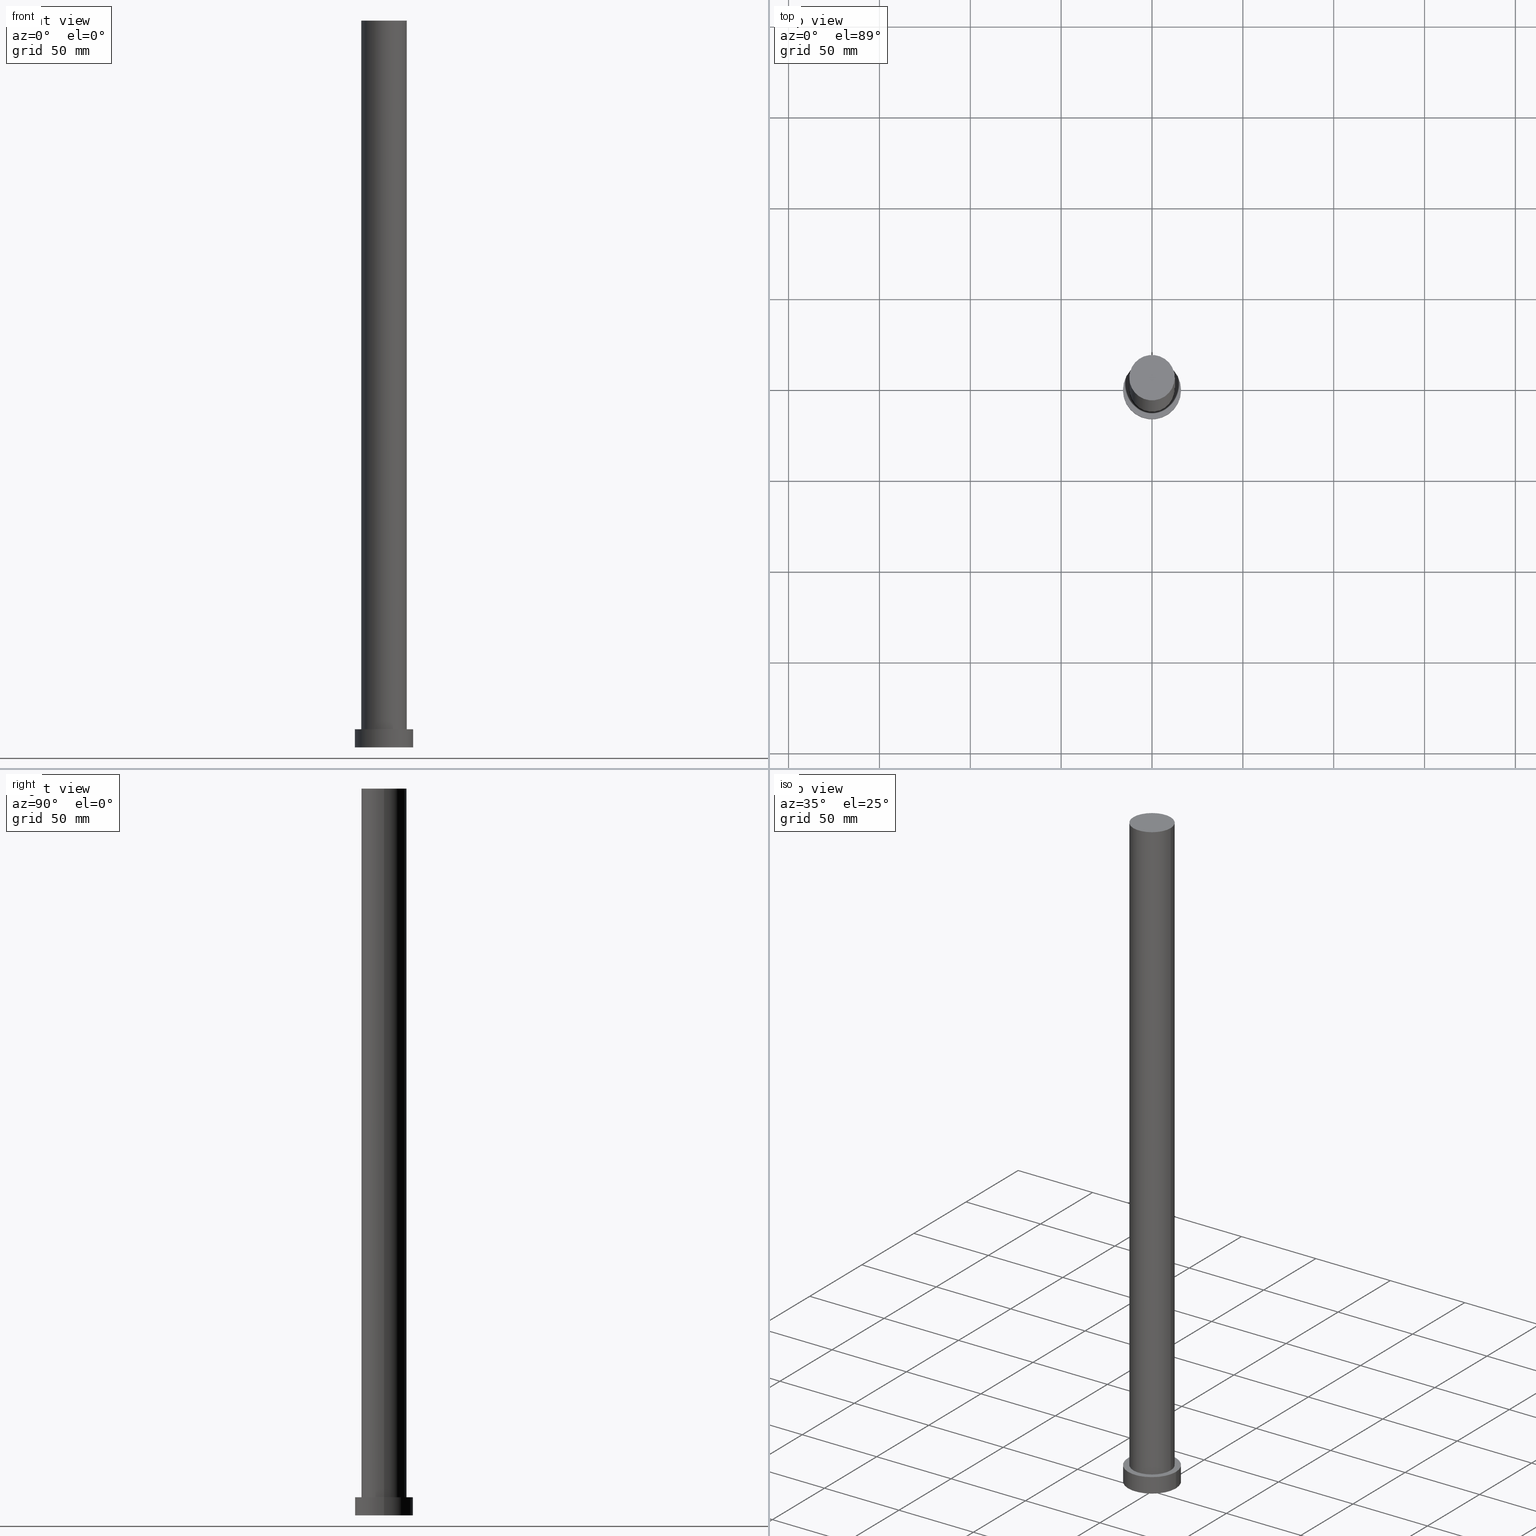
[diagram: canonical four-view strip — front | top / right | iso, engineering-drawing reading convention]
A machine part, canonical four-view strip (front | top / right | iso — engineering-drawing reading convention). The complete STEP part file that produces these views, byte-faithful:
ISO-10303-21;
HEADER;
FILE_DESCRIPTION (( 'STEP AP203' ),
    '1' );
FILE_NAME ('eb0c.STEP',
    '2026-02-06T12:34:33',
    ( '' ),
    ( '' ),
    'SwSTEP 2.0',
    'SolidWorks 2019',
    '' );
FILE_SCHEMA (( 'CONFIG_CONTROL_DESIGN' ));
ENDSEC;

DATA;
#1 = DIRECTION ( 'NONE',  ( 0.000000000000000000, 0.000000000000000000, 1.000000000000000000 ) ) ;
#2 = CIRCLE ( 'NONE', #194, 16.00000000000000000 ) ;
#3 = DIRECTION ( 'NONE',  ( -0.000000000000000000, -0.000000000000000000, -1.000000000000000000 ) ) ;
#4 = EDGE_CURVE ( 'NONE', #222, #123, #27, .T. ) ;
#5 = AXIS2_PLACEMENT_3D ( 'NONE', #110, #39, #76 ) ;
#6 = EDGE_CURVE ( 'NONE', #13, #141, #115, .T. ) ;
#7 = ADVANCED_FACE ( 'NONE', ( #228 ), #51, .T. ) ;
#8 = PERSON_AND_ORGANIZATION ( #134, #62 ) ;
#9 = AXIS2_PLACEMENT_3D ( 'NONE', #196, #11, #161 ) ;
#10 = DIRECTION ( 'NONE',  ( 0.000000000000000000, 0.000000000000000000, 1.000000000000000000 ) ) ;
#11 = DIRECTION ( 'NONE',  ( 0.000000000000000000, 0.000000000000000000, 1.000000000000000000 ) ) ;
#12 = PRODUCT_DEFINITION_FORMATION_WITH_SPECIFIED_SOURCE ( 'LIBOVOLN�', '', #203, .NOT_KNOWN. ) ;
#13 = VERTEX_POINT ( 'NONE', #112 ) ;
#14 = MECHANICAL_CONTEXT ( 'NONE', #229, 'mechanical' ) ;
#15 = DIRECTION ( 'NONE',  ( 1.000000000000000000, 0.000000000000000000, 0.000000000000000000 ) ) ;
#16 = EDGE_LOOP ( 'NONE', ( #18, #120 ) ) ;
#17 = PRODUCT_DEFINITION ( 'NEZN�M�', '', #12, #91 ) ;
#18 = ORIENTED_EDGE ( 'NONE', *, *, #97, .F. ) ;
#19 = CALENDAR_DATE ( 2026, 6, 2 ) ;
#20 = CARTESIAN_POINT ( 'NONE',  ( 0.000000000000000000, 0.000000000000000000, 400.0000000000000000 ) ) ;
#21 = PERSON_AND_ORGANIZATION ( #134, #62 ) ;
#22 = PERSON_AND_ORGANIZATION ( #134, #62 ) ;
#23 = DIRECTION ( 'NONE',  ( 0.000000000000000000, 0.000000000000000000, 1.000000000000000000 ) ) ;
#24 = CIRCLE ( 'NONE', #242, 16.00000000000000000 ) ;
#25 = SECURITY_CLASSIFICATION_LEVEL ( 'unclassified' ) ;
#26 = LOCAL_TIME ( 13, 34, 33.00000000000000000, #28 ) ;
#27 = CIRCLE ( 'NONE', #193, 16.00000000000000000 ) ;
#28 = COORDINATED_UNIVERSAL_TIME_OFFSET ( 1, 0, .AHEAD. ) ;
#29 = ORIENTED_EDGE ( 'NONE', *, *, #30, .T. ) ;
#30 = EDGE_CURVE ( 'NONE', #160, #13, #35, .T. ) ;
#31 = CARTESIAN_POINT ( 'NONE',  ( 0.000000000000000000, 0.000000000000000000, 10.00000000000000000 ) ) ;
#32 = ORIENTED_EDGE ( 'NONE', *, *, #81, .T. ) ;
#33 = APPLICATION_PROTOCOL_DEFINITION ( 'international standard', 'config_control_design', 1994, #105 ) ;
#34 = ORIENTED_EDGE ( 'NONE', *, *, #155, .T. ) ;
#35 = CIRCLE ( 'NONE', #140, 12.50000000000000000 ) ;
#36 = DIRECTION ( 'NONE',  ( 1.000000000000000000, 0.000000000000000000, 0.000000000000000000 ) ) ;
#37 = DIRECTION ( 'NONE',  ( -0.000000000000000000, -0.000000000000000000, -1.000000000000000000 ) ) ;
#38 = COORDINATED_UNIVERSAL_TIME_OFFSET ( 1, 0, .AHEAD. ) ;
#39 = DIRECTION ( 'NONE',  ( -0.000000000000000000, -0.000000000000000000, -1.000000000000000000 ) ) ;
#40 = CARTESIAN_POINT ( 'NONE',  ( 16.00000000000000000, 1.959434878635765131E-15, 10.00000000000000000 ) ) ;
#41 = DATE_TIME_ROLE ( 'classification_date' ) ;
#42 = SHAPE_DEFINITION_REPRESENTATION ( #181, #240 ) ;
#43 = AXIS2_PLACEMENT_3D ( 'NONE', #183, #119, #223 ) ;
#44 = APPROVAL_DATE_TIME ( #241, #126 ) ;
#45 = DIRECTION ( 'NONE',  ( 0.000000000000000000, 0.000000000000000000, 1.000000000000000000 ) ) ;
#46 = EDGE_LOOP ( 'NONE', ( #182, #125, #34, #88 ) ) ;
#47 = ORIENTED_EDGE ( 'NONE', *, *, #155, .F. ) ;
#48 = AXIS2_PLACEMENT_3D ( 'NONE', #227, #10, #101 ) ;
#49 = VERTEX_POINT ( 'NONE', #166 ) ;
#50 = CYLINDRICAL_SURFACE ( 'NONE', #77, 12.50000000000000000 ) ;
#51 = CYLINDRICAL_SURFACE ( 'NONE', #216, 16.00000000000000000 ) ;
#52 = AXIS2_PLACEMENT_3D ( 'NONE', #20, #208, #89 ) ;
#53 = DIRECTION ( 'NONE',  ( 0.000000000000000000, 0.000000000000000000, 1.000000000000000000 ) ) ;
#54 = DIRECTION ( 'NONE',  ( -1.000000000000000000, 0.000000000000000000, 0.000000000000000000 ) ) ;
#55 = DIRECTION ( 'NONE',  ( 1.000000000000000000, 0.000000000000000000, 0.000000000000000000 ) ) ;
#56 = APPROVAL ( #225, 'NEUR�EN�' ) ;
#57 = CIRCLE ( 'NONE', #70, 12.50000000000000000 ) ;
#58 = DATE_AND_TIME ( #137, #26 ) ;
#59 = MANIFOLD_SOLID_BREP ( 'P�idat vysunut�m3', #200 ) ;
#60 = PERSON_AND_ORGANIZATION ( #134, #62 ) ;
#61 = FACE_OUTER_BOUND ( 'NONE', #68, .T. ) ;
#62 = ORGANIZATION ( 'NEUR�EN�', 'NEUR�EN�', '' ) ;
#63 =( LENGTH_UNIT ( ) NAMED_UNIT ( * ) SI_UNIT ( .MILLI., .METRE. ) );
#64 = ORIENTED_EDGE ( 'NONE', *, *, #234, .T. ) ;
#65 = UNCERTAINTY_MEASURE_WITH_UNIT (LENGTH_MEASURE( 1.000000000000000082E-05 ), #63, 'distance_accuracy_value', 'NONE');
#66 = ORIENTED_EDGE ( 'NONE', *, *, #234, .F. ) ;
#67 = PERSON_AND_ORGANIZATION_ROLE ( 'design_owner' ) ;
#68 = EDGE_LOOP ( 'NONE', ( #243, #252 ) ) ;
#69 = FACE_OUTER_BOUND ( 'NONE', #226, .T. ) ;
#70 = AXIS2_PLACEMENT_3D ( 'NONE', #230, #53, #131 ) ;
#71 = ORIENTED_EDGE ( 'NONE', *, *, #138, .T. ) ;
#72 = DIRECTION ( 'NONE',  ( 0.000000000000000000, 0.000000000000000000, 1.000000000000000000 ) ) ;
#73 = DIRECTION ( 'NONE',  ( -0.000000000000000000, -0.000000000000000000, -1.000000000000000000 ) ) ;
#74 = APPROVAL ( #254, 'NEUR�EN�' ) ;
#75 = CC_DESIGN_APPROVAL ( #126, ( #129 ) ) ;
#76 = DIRECTION ( 'NONE',  ( -1.000000000000000000, 0.000000000000000000, 0.000000000000000000 ) ) ;
#77 = AXIS2_PLACEMENT_3D ( 'NONE', #117, #199, #80 ) ;
#78 = PRODUCT_RELATED_PRODUCT_CATEGORY ( 'detail', '', ( #203 ) ) ;
#79 = PLANE ( 'NONE',  #43 ) ;
#80 = DIRECTION ( 'NONE',  ( -1.000000000000000000, 0.000000000000000000, 0.000000000000000000 ) ) ;
#81 = EDGE_CURVE ( 'NONE', #158, #49, #235, .T. ) ;
#82 = AXIS2_PLACEMENT_3D ( 'NONE', #133, #128, #36 ) ;
#83 = ORIENTED_EDGE ( 'NONE', *, *, #138, .F. ) ;
#84 = DIRECTION ( 'NONE',  ( 1.000000000000000000, 0.000000000000000000, 0.000000000000000000 ) ) ;
#85 = ORIENTED_EDGE ( 'NONE', *, *, #4, .T. ) ;
#86 = DATE_TIME_ROLE ( 'creation_date' ) ;
#87 = APPROVAL_PERSON_ORGANIZATION ( #153, #126, #152 ) ;
#88 = ORIENTED_EDGE ( 'NONE', *, *, #198, .T. ) ;
#89 = DIRECTION ( 'NONE',  ( -1.000000000000000000, 0.000000000000000000, 0.000000000000000000 ) ) ;
#90 = CALENDAR_DATE ( 2026, 6, 2 ) ;
#91 = DESIGN_CONTEXT ( 'detailed design', #105, 'design' ) ;
#92 = CARTESIAN_POINT ( 'NONE',  ( 12.50000000000000000, 1.530808498934191521E-15, 10.00000000000000000 ) ) ;
#93 = PERSON_AND_ORGANIZATION_ROLE ( 'creator' ) ;
#94 = VECTOR ( 'NONE', #73, 1000.000000000000000 ) ;
#95 = CARTESIAN_POINT ( 'NONE',  ( -16.00000000000000000, 0.000000000000000000, 0.000000000000000000 ) ) ;
#96 =( GEOMETRIC_REPRESENTATION_CONTEXT ( 3 ) GLOBAL_UNCERTAINTY_ASSIGNED_CONTEXT ( ( #65 ) ) GLOBAL_UNIT_ASSIGNED_CONTEXT ( ( #63, #202, #249 ) ) REPRESENTATION_CONTEXT ( 'NONE', 'WORKASPACE' ) );
#97 = EDGE_CURVE ( 'NONE', #118, #141, #177, .T. ) ;
#98 = CC_DESIGN_APPROVAL ( #56, ( #17 ) ) ;
#99 = APPROVAL_STATUS ( 'not_yet_approved' ) ;
#100 = CARTESIAN_POINT ( 'NONE',  ( 0.000000000000000000, 0.000000000000000000, 10.00000000000000000 ) ) ;
#101 = DIRECTION ( 'NONE',  ( 1.000000000000000000, 0.000000000000000000, -0.000000000000000000 ) ) ;
#102 = EDGE_LOOP ( 'NONE', ( #32, #64 ) ) ;
#103 = CC_DESIGN_SECURITY_CLASSIFICATION ( #129, ( #12 ) ) ;
#104 = EDGE_LOOP ( 'NONE', ( #66, #144, #85, #47 ) ) ;
#105 = APPLICATION_CONTEXT ( 'configuration controlled 3d designs of mechanical parts and assemblies' ) ;
#106 = DIRECTION ( 'NONE',  ( 1.000000000000000000, 0.000000000000000000, 0.000000000000000000 ) ) ;
#107 = ORIENTED_EDGE ( 'NONE', *, *, #145, .T. ) ;
#108 = EDGE_CURVE ( 'NONE', #49, #222, #212, .T. ) ;
#109 = AXIS2_PLACEMENT_3D ( 'NONE', #100, #45, #205 ) ;
#110 = CARTESIAN_POINT ( 'NONE',  ( 0.000000000000000000, 0.000000000000000000, 10.00000000000000000 ) ) ;
#111 = DATE_AND_TIME ( #19, #245 ) ;
#112 = CARTESIAN_POINT ( 'NONE',  ( 12.50000000000000000, 1.530808498934191521E-15, 400.0000000000000000 ) ) ;
#113 = COORDINATED_UNIVERSAL_TIME_OFFSET ( 1, 0, .AHEAD. ) ;
#114 = DIRECTION ( 'NONE',  ( -0.000000000000000000, -0.000000000000000000, -1.000000000000000000 ) ) ;
#115 = LINE ( 'NONE', #169, #251 ) ;
#116 = ADVANCED_FACE ( 'NONE', ( #211 ), #165, .T. ) ;
#117 = CARTESIAN_POINT ( 'NONE',  ( 0.000000000000000000, 0.000000000000000000, 400.0000000000000000 ) ) ;
#118 = VERTEX_POINT ( 'NONE', #191 ) ;
#119 = DIRECTION ( 'NONE',  ( 0.000000000000000000, 0.000000000000000000, 1.000000000000000000 ) ) ;
#120 = ORIENTED_EDGE ( 'NONE', *, *, #188, .F. ) ;
#121 = APPROVAL_PERSON_ORGANIZATION ( #143, #56, #150 ) ;
#122 = DIRECTION ( 'NONE',  ( 0.000000000000000000, 0.000000000000000000, 1.000000000000000000 ) ) ;
#123 = VERTEX_POINT ( 'NONE', #95 ) ;
#124 = CARTESIAN_POINT ( 'NONE',  ( -16.00000000000000000, 0.000000000000000000, 10.00000000000000000 ) ) ;
#125 = ORIENTED_EDGE ( 'NONE', *, *, #81, .F. ) ;
#126 = APPROVAL ( #99, 'NEUR�EN�' ) ;
#127 = DATE_AND_TIME ( #207, #220 ) ;
#128 = DIRECTION ( 'NONE',  ( 0.000000000000000000, 0.000000000000000000, 1.000000000000000000 ) ) ;
#129 = SECURITY_CLASSIFICATION ( '', '', #25 ) ;
#130 = ADVANCED_FACE ( 'NONE', ( #253 ), #189, .T. ) ;
#131 = DIRECTION ( 'NONE',  ( 1.000000000000000000, 0.000000000000000000, 0.000000000000000000 ) ) ;
#132 = PERSON_AND_ORGANIZATION ( #134, #62 ) ;
#133 = CARTESIAN_POINT ( 'NONE',  ( 0.000000000000000000, 0.000000000000000000, 10.00000000000000000 ) ) ;
#134 = PERSON ( 'NEUR�EN�', 'NEUR�EN�', 'NEUR�EN�', ('NEUR�EN�'), ('NEUR�EN�'), ('NEUR�EN�') ) ;
#135 = CC_DESIGN_DATE_AND_TIME_ASSIGNMENT ( #58, #41, ( #129 ) ) ;
#136 = APPROVAL_PERSON_ORGANIZATION ( #21, #74, #147 ) ;
#137 = CALENDAR_DATE ( 2026, 6, 2 ) ;
#138 = EDGE_CURVE ( 'NONE', #160, #118, #255, .T. ) ;
#139 = FACE_OUTER_BOUND ( 'NONE', #102, .T. ) ;
#140 = AXIS2_PLACEMENT_3D ( 'NONE', #148, #72, #168 ) ;
#141 = VERTEX_POINT ( 'NONE', #92 ) ;
#142 = APPLICATION_PROTOCOL_DEFINITION ( 'international standard', 'config_control_design', 1994, #229 ) ;
#143 = PERSON_AND_ORGANIZATION ( #134, #62 ) ;
#144 = ORIENTED_EDGE ( 'NONE', *, *, #108, .T. ) ;
#145 = EDGE_CURVE ( 'NONE', #13, #160, #57, .T. ) ;
#146 = DIRECTION ( 'NONE',  ( -0.000000000000000000, -0.000000000000000000, -1.000000000000000000 ) ) ;
#147 = APPROVAL_ROLE ( '' ) ;
#148 = CARTESIAN_POINT ( 'NONE',  ( 0.000000000000000000, 0.000000000000000000, 400.0000000000000000 ) ) ;
#149 = CARTESIAN_POINT ( 'NONE',  ( -12.50000000000000000, 0.000000000000000000, 400.0000000000000000 ) ) ;
#150 = APPROVAL_ROLE ( '' ) ;
#151 = CARTESIAN_POINT ( 'NONE',  ( 0.000000000000000000, 0.000000000000000000, 10.00000000000000000 ) ) ;
#152 = APPROVAL_ROLE ( '' ) ;
#153 = PERSON_AND_ORGANIZATION ( #134, #62 ) ;
#154 = AXIS2_PLACEMENT_3D ( 'NONE', #197, #176, #106 ) ;
#155 = EDGE_CURVE ( 'NONE', #158, #123, #210, .T. ) ;
#156 = FACE_BOUND ( 'NONE', #16, .T. ) ;
#157 = LOCAL_TIME ( 13, 34, 33.00000000000000000, #215 ) ;
#158 = VERTEX_POINT ( 'NONE', #124 ) ;
#159 = PLANE ( 'NONE',  #48 ) ;
#160 = VERTEX_POINT ( 'NONE', #180 ) ;
#161 = DIRECTION ( 'NONE',  ( 1.000000000000000000, 0.000000000000000000, -0.000000000000000000 ) ) ;
#162 = ORIENTED_EDGE ( 'NONE', *, *, #188, .T. ) ;
#163 = FACE_OUTER_BOUND ( 'NONE', #248, .T. ) ;
#164 = AXIS2_PLACEMENT_3D ( 'NONE', #151, #1, #55 ) ;
#165 = CYLINDRICAL_SURFACE ( 'NONE', #5, 16.00000000000000000 ) ;
#166 = CARTESIAN_POINT ( 'NONE',  ( 16.00000000000000000, 1.959434878635765131E-15, 10.00000000000000000 ) ) ;
#167 = APPROVAL_DATE_TIME ( #190, #74 ) ;
#168 = DIRECTION ( 'NONE',  ( 1.000000000000000000, 0.000000000000000000, 0.000000000000000000 ) ) ;
#169 = CARTESIAN_POINT ( 'NONE',  ( 12.50000000000000000, 1.530808498934191521E-15, 400.0000000000000000 ) ) ;
#170 = CC_DESIGN_PERSON_AND_ORGANIZATION_ASSIGNMENT ( #8, #217, ( #129 ) ) ;
#171 = CIRCLE ( 'NONE', #109, 12.50000000000000000 ) ;
#172 = VECTOR ( 'NONE', #37, 1000.000000000000000 ) ;
#173 = CARTESIAN_POINT ( 'NONE',  ( 16.00000000000000000, 1.959434878635765131E-15, 0.000000000000000000 ) ) ;
#174 = ADVANCED_FACE ( 'NONE', ( #61 ), #219, .F. ) ;
#175 = PERSON_AND_ORGANIZATION ( #134, #62 ) ;
#176 = DIRECTION ( 'NONE',  ( 0.000000000000000000, 0.000000000000000000, 1.000000000000000000 ) ) ;
#177 = CIRCLE ( 'NONE', #82, 12.50000000000000000 ) ;
#178 = ORIENTED_EDGE ( 'NONE', *, *, #97, .T. ) ;
#179 = ADVANCED_FACE ( 'NONE', ( #156, #139 ), #159, .T. ) ;
#180 = CARTESIAN_POINT ( 'NONE',  ( -12.50000000000000000, 0.000000000000000000, 400.0000000000000000 ) ) ;
#181 = PRODUCT_DEFINITION_SHAPE ( 'NONE', 'NONE',  #17 ) ;
#182 = ORIENTED_EDGE ( 'NONE', *, *, #108, .F. ) ;
#183 = CARTESIAN_POINT ( 'NONE',  ( 0.000000000000000000, 0.000000000000000000, 400.0000000000000000 ) ) ;
#184 = PERSON_AND_ORGANIZATION_ROLE ( 'creator' ) ;
#185 = COORDINATED_UNIVERSAL_TIME_OFFSET ( 1, 0, .AHEAD. ) ;
#186 = DIRECTION ( 'NONE',  ( 1.000000000000000000, 0.000000000000000000, 0.000000000000000000 ) ) ;
#187 = APPROVAL_DATE_TIME ( #127, #56 ) ;
#188 = EDGE_CURVE ( 'NONE', #141, #118, #171, .T. ) ;
#189 = CYLINDRICAL_SURFACE ( 'NONE', #52, 12.50000000000000000 ) ;
#190 = DATE_AND_TIME ( #90, #213 ) ;
#191 = CARTESIAN_POINT ( 'NONE',  ( -12.50000000000000000, 0.000000000000000000, 10.00000000000000000 ) ) ;
#192 = CC_DESIGN_DATE_AND_TIME_ASSIGNMENT ( #111, #86, ( #17 ) ) ;
#193 = AXIS2_PLACEMENT_3D ( 'NONE', #224, #23, #186 ) ;
#194 = AXIS2_PLACEMENT_3D ( 'NONE', #31, #122, #15 ) ;
#195 = CC_DESIGN_PERSON_AND_ORGANIZATION_ASSIGNMENT ( #22, #184, ( #17 ) ) ;
#196 = CARTESIAN_POINT ( 'NONE',  ( 0.000000000000000000, 0.000000000000000000, 0.000000000000000000 ) ) ;
#197 = CARTESIAN_POINT ( 'NONE',  ( 0.000000000000000000, 0.000000000000000000, 0.000000000000000000 ) ) ;
#198 = EDGE_CURVE ( 'NONE', #123, #222, #24, .T. ) ;
#199 = DIRECTION ( 'NONE',  ( -0.000000000000000000, -0.000000000000000000, -1.000000000000000000 ) ) ;
#200 = CLOSED_SHELL ( 'NONE', ( #130, #116, #7, #179, #174, #209, #221 ) ) ;
#201 = ORIENTED_EDGE ( 'NONE', *, *, #6, .F. ) ;
#202 =( NAMED_UNIT ( * ) PLANE_ANGLE_UNIT ( ) SI_UNIT ( $, .RADIAN. ) );
#203 = PRODUCT ( 'eb0c', 'eb0c', '', ( #14 ) ) ;
#204 = ORIENTED_EDGE ( 'NONE', *, *, #30, .F. ) ;
#205 = DIRECTION ( 'NONE',  ( 1.000000000000000000, 0.000000000000000000, 0.000000000000000000 ) ) ;
#206 = EDGE_LOOP ( 'NONE', ( #246, #250, #162, #83 ) ) ;
#207 = CALENDAR_DATE ( 2026, 6, 2 ) ;
#208 = DIRECTION ( 'NONE',  ( -0.000000000000000000, -0.000000000000000000, -1.000000000000000000 ) ) ;
#209 = ADVANCED_FACE ( 'NONE', ( #163 ), #50, .T. ) ;
#210 = LINE ( 'NONE', #232, #172 ) ;
#211 = FACE_OUTER_BOUND ( 'NONE', #104, .T. ) ;
#212 = LINE ( 'NONE', #40, #231 ) ;
#213 = LOCAL_TIME ( 13, 34, 33.00000000000000000, #113 ) ;
#214 = PERSON_AND_ORGANIZATION_ROLE ( 'design_supplier' ) ;
#215 = COORDINATED_UNIVERSAL_TIME_OFFSET ( 1, 0, .AHEAD. ) ;
#216 = AXIS2_PLACEMENT_3D ( 'NONE', #233, #3, #54 ) ;
#217 = PERSON_AND_ORGANIZATION_ROLE ( 'classification_officer' ) ;
#218 = CC_DESIGN_PERSON_AND_ORGANIZATION_ASSIGNMENT ( #60, #214, ( #12 ) ) ;
#219 = PLANE ( 'NONE',  #9 ) ;
#220 = LOCAL_TIME ( 13, 34, 33.00000000000000000, #38 ) ;
#221 = ADVANCED_FACE ( 'NONE', ( #69 ), #79, .T. ) ;
#222 = VERTEX_POINT ( 'NONE', #173 ) ;
#223 = DIRECTION ( 'NONE',  ( 1.000000000000000000, 0.000000000000000000, -0.000000000000000000 ) ) ;
#224 = CARTESIAN_POINT ( 'NONE',  ( 0.000000000000000000, 0.000000000000000000, 0.000000000000000000 ) ) ;
#225 = APPROVAL_STATUS ( 'not_yet_approved' ) ;
#226 = EDGE_LOOP ( 'NONE', ( #29, #107 ) ) ;
#227 = CARTESIAN_POINT ( 'NONE',  ( 0.000000000000000000, 0.000000000000000000, 10.00000000000000000 ) ) ;
#228 = FACE_OUTER_BOUND ( 'NONE', #46, .T. ) ;
#229 = APPLICATION_CONTEXT ( 'configuration controlled 3d designs of mechanical parts and assemblies' ) ;
#230 = CARTESIAN_POINT ( 'NONE',  ( 0.000000000000000000, 0.000000000000000000, 400.0000000000000000 ) ) ;
#231 = VECTOR ( 'NONE', #146, 1000.000000000000000 ) ;
#232 = CARTESIAN_POINT ( 'NONE',  ( -16.00000000000000000, 0.000000000000000000, 10.00000000000000000 ) ) ;
#233 = CARTESIAN_POINT ( 'NONE',  ( 0.000000000000000000, 0.000000000000000000, 10.00000000000000000 ) ) ;
#234 = EDGE_CURVE ( 'NONE', #49, #158, #2, .T. ) ;
#235 = CIRCLE ( 'NONE', #164, 16.00000000000000000 ) ;
#236 = CC_DESIGN_APPROVAL ( #74, ( #12 ) ) ;
#237 = CALENDAR_DATE ( 2026, 6, 2 ) ;
#238 = CC_DESIGN_PERSON_AND_ORGANIZATION_ASSIGNMENT ( #175, #67, ( #203 ) ) ;
#239 = CC_DESIGN_PERSON_AND_ORGANIZATION_ASSIGNMENT ( #132, #93, ( #12 ) ) ;
#240 = ADVANCED_BREP_SHAPE_REPRESENTATION ( 'eb0c', ( #59, #154 ), #96 ) ;
#241 = DATE_AND_TIME ( #237, #157 ) ;
#242 = AXIS2_PLACEMENT_3D ( 'NONE', #244, #247, #84 ) ;
#243 = ORIENTED_EDGE ( 'NONE', *, *, #198, .F. ) ;
#244 = CARTESIAN_POINT ( 'NONE',  ( 0.000000000000000000, 0.000000000000000000, 0.000000000000000000 ) ) ;
#245 = LOCAL_TIME ( 13, 34, 33.00000000000000000, #185 ) ;
#246 = ORIENTED_EDGE ( 'NONE', *, *, #145, .F. ) ;
#247 = DIRECTION ( 'NONE',  ( 0.000000000000000000, 0.000000000000000000, 1.000000000000000000 ) ) ;
#248 = EDGE_LOOP ( 'NONE', ( #201, #204, #71, #178 ) ) ;
#249 =( NAMED_UNIT ( * ) SI_UNIT ( $, .STERADIAN. ) SOLID_ANGLE_UNIT ( ) );
#250 = ORIENTED_EDGE ( 'NONE', *, *, #6, .T. ) ;
#251 = VECTOR ( 'NONE', #114, 1000.000000000000000 ) ;
#252 = ORIENTED_EDGE ( 'NONE', *, *, #4, .F. ) ;
#253 = FACE_OUTER_BOUND ( 'NONE', #206, .T. ) ;
#254 = APPROVAL_STATUS ( 'not_yet_approved' ) ;
#255 = LINE ( 'NONE', #149, #94 ) ;
ENDSEC;
END-ISO-10303-21;
